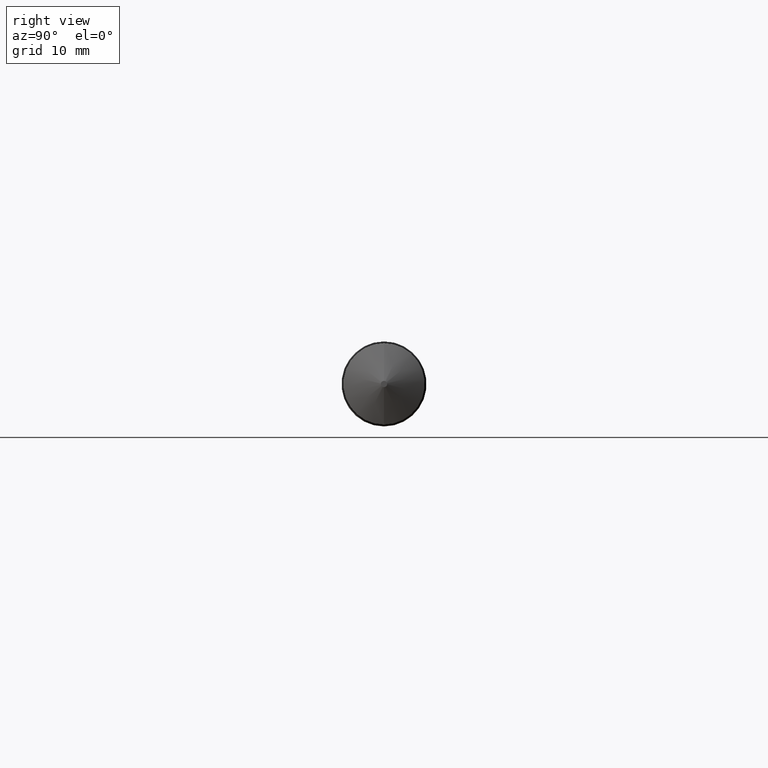
[diagram: clean part render]
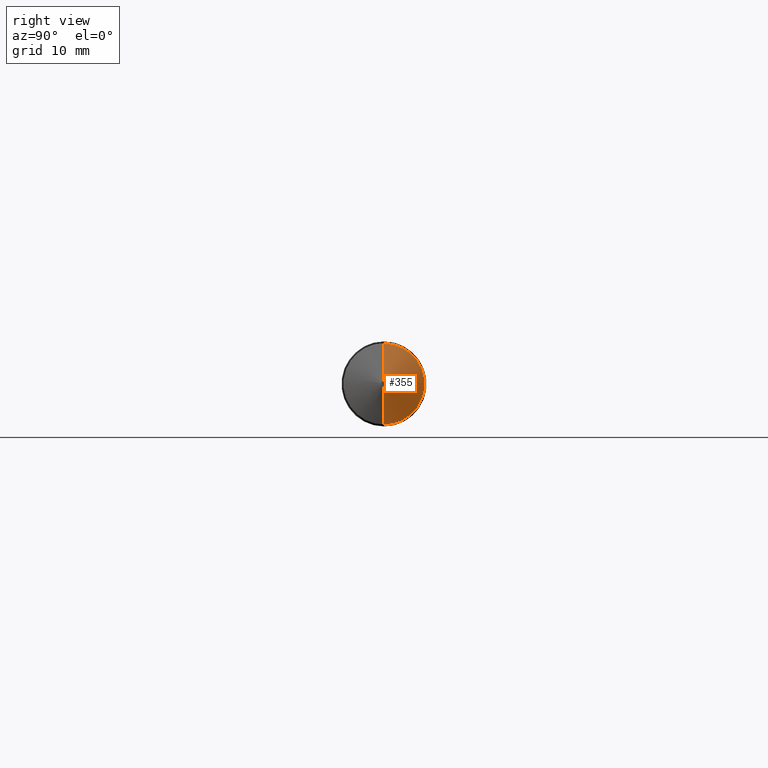
[diagram: same view with one face highlighted and labeled with its STEP entity id]
A machine part, right view. The second image highlights one B-rep face of the part: STEP entity #355.
In plain terms, the highlighted conical surface has half-angle 70 deg.
Its self-contained STEP definition (entity closure, byte-faithful):
#1 = EDGE_CURVE ( 'NONE', #365, #278, #6, .T. ) ;
#4 = CARTESIAN_POINT ( 'NONE',  ( 4.015748031496062964, 0.000000000000000000, 0.000000000000000000 ) ) ;
#6 = LINE ( 'NONE', #199, #132 ) ;
#30 = DIRECTION ( 'NONE',  ( 0.000000000000000000, 0.000000000000000000, 1.000000000000000000 ) ) ;
#35 = EDGE_LOOP ( 'NONE', ( #150, #207, #356, #337 ) ) ;
#56 = CARTESIAN_POINT ( 'NONE',  ( 3.939860237651560126, 0.000000000000000000, 0.000000000000000000 ) ) ;
#70 = VERTEX_POINT ( 'NONE', #98 ) ;
#79 = AXIS2_PLACEMENT_3D ( 'NONE', #4, #291, #30 ) ;
#81 = DIRECTION ( 'NONE',  ( 1.000000000000000000, -0.000000000000000000, -0.000000000000000000 ) ) ;
#85 = CONICAL_SURFACE ( 'NONE', #79, 0.01750000000000049780, 1.221730476396032827 ) ;
#98 = CARTESIAN_POINT ( 'NONE',  ( 3.939860237651560126, 0.000000000000000000, 0.2260000000000005060 ) ) ;
#106 = EDGE_CURVE ( 'NONE', #365, #154, #171, .T. ) ;
#111 = VECTOR ( 'NONE', #255, 39.37007874015748143 ) ;
#131 = DIRECTION ( 'NONE',  ( 0.000000000000000000, 0.000000000000000000, -1.000000000000000000 ) ) ;
#132 = VECTOR ( 'NONE', #230, 39.37007874015748143 ) ;
#137 = LINE ( 'NONE', #191, #111 ) ;
#139 = CIRCLE ( 'NONE', #349, 0.2260000000000004783 ) ;
#150 = ORIENTED_EDGE ( 'NONE', *, *, #106, .F. ) ;
#154 = VERTEX_POINT ( 'NONE', #282 ) ;
#171 = CIRCLE ( 'NONE', #221, 0.01750000000000049780 ) ;
#191 = CARTESIAN_POINT ( 'NONE',  ( 4.015748031496062964, 0.000000000000000000, 0.01750000000000049780 ) ) ;
#197 = EDGE_CURVE ( 'NONE', #154, #70, #137, .T. ) ;
#199 = CARTESIAN_POINT ( 'NONE',  ( 4.015748031496062964, 2.143131898507929234E-18, -0.01750000000000049780 ) ) ;
#207 = ORIENTED_EDGE ( 'NONE', *, *, #1, .T. ) ;
#221 = AXIS2_PLACEMENT_3D ( 'NONE', #347, #81, #315 ) ;
#227 = EDGE_CURVE ( 'NONE', #278, #70, #139, .T. ) ;
#230 = DIRECTION ( 'NONE',  ( -0.3420201433256667145, 1.150791560227851256E-16, -0.9396926207859090940 ) ) ;
#255 = DIRECTION ( 'NONE',  ( -0.3420201433256667145, 0.000000000000000000, 0.9396926207859090940 ) ) ;
#278 = VERTEX_POINT ( 'NONE', #292 ) ;
#282 = CARTESIAN_POINT ( 'NONE',  ( 4.015748031496062964, 0.000000000000000000, 0.01750000000000049780 ) ) ;
#289 = DIRECTION ( 'NONE',  ( 1.000000000000000000, -0.000000000000000000, -0.000000000000000000 ) ) ;
#291 = DIRECTION ( 'NONE',  ( -1.000000000000000000, 0.000000000000000000, 0.000000000000000000 ) ) ;
#292 = CARTESIAN_POINT ( 'NONE',  ( 3.939860237651560126, 2.767701766073025062E-17, -0.2260000000000005060 ) ) ;
#294 = CARTESIAN_POINT ( 'NONE',  ( 4.015748031496062964, 1.491007477961908473E-17, -0.01750000000000049780 ) ) ;
#315 = DIRECTION ( 'NONE',  ( 0.000000000000000000, 0.000000000000000000, -1.000000000000000000 ) ) ;
#321 = FACE_OUTER_BOUND ( 'NONE', #35, .T. ) ;
#337 = ORIENTED_EDGE ( 'NONE', *, *, #197, .F. ) ;
#347 = CARTESIAN_POINT ( 'NONE',  ( 4.015748031496062964, 0.000000000000000000, 0.000000000000000000 ) ) ;
#349 = AXIS2_PLACEMENT_3D ( 'NONE', #56, #289, #131 ) ;
#355 = ADVANCED_FACE ( 'NONE', ( #321 ), #85, .T. ) ;
#356 = ORIENTED_EDGE ( 'NONE', *, *, #227, .T. ) ;
#365 = VERTEX_POINT ( 'NONE', #294 ) ;